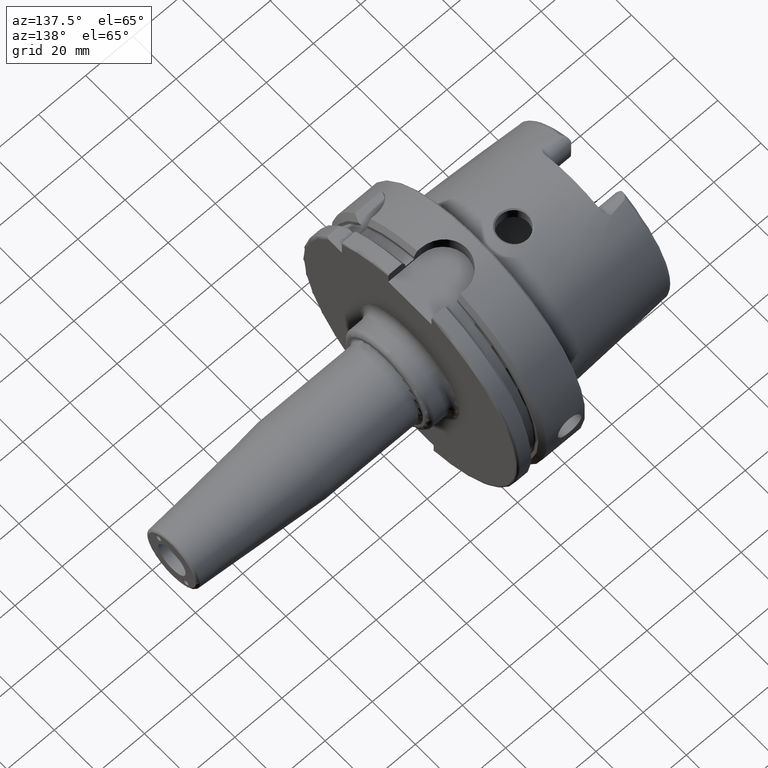
[diagram: clean part render]
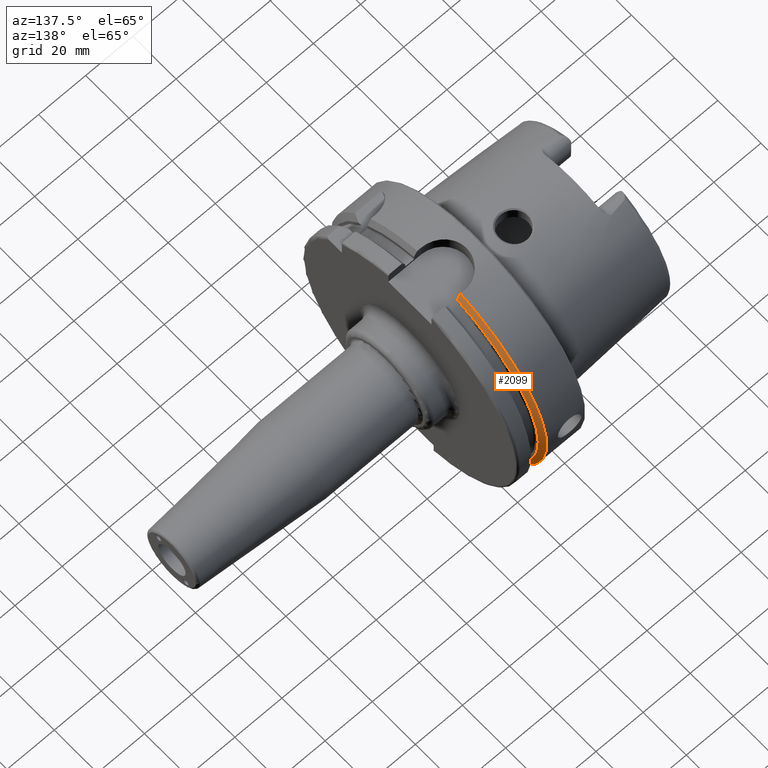
[diagram: same view with one face highlighted and labeled with its STEP entity id]
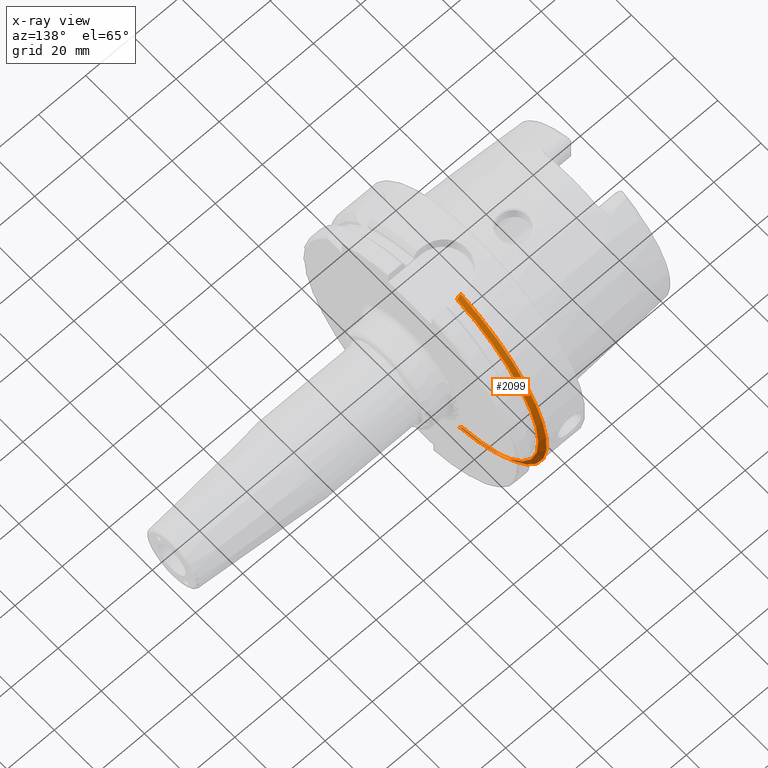
[diagram: x-ray of the same camera — body ghosted, the highlighted face saturated]
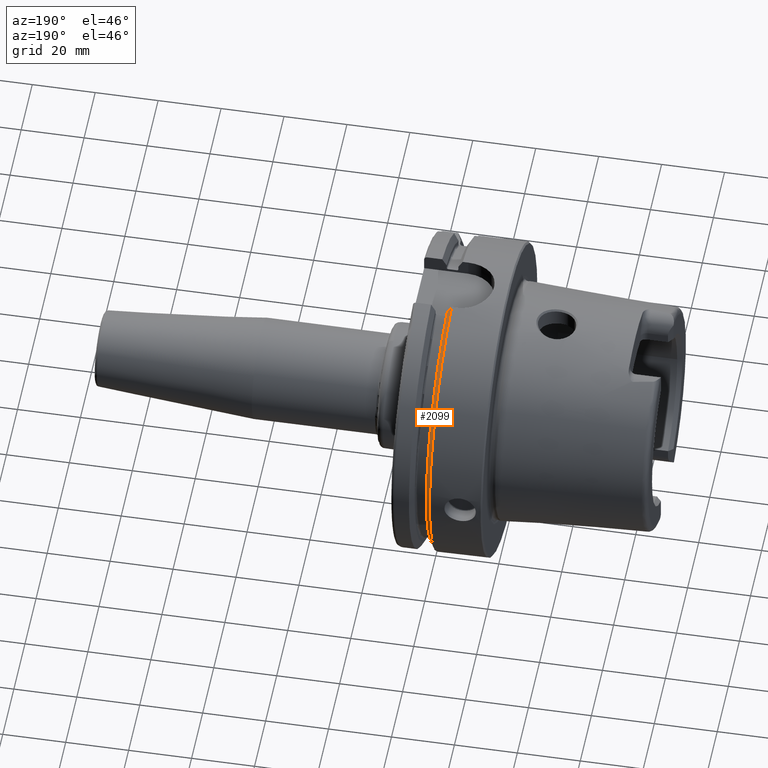
[diagram: same view with one face highlighted and labeled with its STEP entity id]
A machine part, auxiliary view. The second image highlights one B-rep face of the part: STEP entity #2099.
The next image is the same camera in x-ray: the body ghosted, the highlighted face saturated — about 6% of this face is hidden behind the body in this view.
A second angle (auxiliary view) of the same face is appended — the face is thin or edge-on in the first view.
In plain terms, the highlighted conical surface has half-angle 60 deg.
Its self-contained STEP definition (entity closure, byte-faithful):
#23=(
BOUNDED_CURVE()
B_SPLINE_CURVE(2,(#4250,#4251,#4252),.UNSPECIFIED.,.F.,.F.)
B_SPLINE_CURVE_WITH_KNOTS((3,3),(0.,0.282923490805558),.UNSPECIFIED.)
CURVE()
GEOMETRIC_REPRESENTATION_ITEM()
RATIONAL_B_SPLINE_CURVE((1.,1.00031934109636,1.))
REPRESENTATION_ITEM('')
);
#28=(
BOUNDED_CURVE()
B_SPLINE_CURVE(2,(#4415,#4416,#4417),.UNSPECIFIED.,.F.,.F.)
B_SPLINE_CURVE_WITH_KNOTS((3,3),(0.,0.281931851964124),.UNSPECIFIED.)
CURVE()
GEOMETRIC_REPRESENTATION_ITEM()
RATIONAL_B_SPLINE_CURVE((1.,1.00031639798907,1.))
REPRESENTATION_ITEM('')
);
#285=FACE_OUTER_BOUND('',#418,.T.);
#418=EDGE_LOOP('',(#1762,#1763,#1764,#1765));
#752=CIRCLE('',#2291,50.);
#776=CIRCLE('',#2340,47.5975952641917);
#959=VERTEX_POINT('',#4131);
#960=VERTEX_POINT('',#4133);
#978=VERTEX_POINT('',#4249);
#1003=VERTEX_POINT('',#4411);
#1211=EDGE_CURVE('',#960,#959,#752,.T.);
#1241=EDGE_CURVE('',#978,#960,#23,.T.);
#1281=EDGE_CURVE('',#978,#1003,#776,.T.);
#1283=EDGE_CURVE('',#959,#1003,#28,.T.);
#1762=ORIENTED_EDGE('',*,*,#1241,.T.);
#1763=ORIENTED_EDGE('',*,*,#1211,.T.);
#1764=ORIENTED_EDGE('',*,*,#1283,.T.);
#1765=ORIENTED_EDGE('',*,*,#1281,.F.);
#2019=CONICAL_SURFACE('',#2341,48.7987976320958,1.0471975511966);
#2099=ADVANCED_FACE('',(#285),#2019,.T.);
#2291=AXIS2_PLACEMENT_3D('',#4134,#2739,#2740);
#2340=AXIS2_PLACEMENT_3D('',#4412,#2862,#2863);
#2341=AXIS2_PLACEMENT_3D('',#4414,#2865,#2866);
#2739=DIRECTION('center_axis',(1.,0.,0.));
#2740=DIRECTION('ref_axis',(0.,0.,-1.));
#2862=DIRECTION('center_axis',(1.,0.,0.));
#2863=DIRECTION('ref_axis',(0.,0.,-1.));
#2865=DIRECTION('center_axis',(-1.,0.,0.));
#2866=DIRECTION('ref_axis',(0.,1.,0.));
#4131=CARTESIAN_POINT('',(16.7379709790786,10.,48.9897948556636));
#4133=CARTESIAN_POINT('',(16.7379709790786,11.,-48.7749935930288));
#4134=CARTESIAN_POINT('Origin',(16.7379709790786,0.,0.));
#4249=CARTESIAN_POINT('',(18.125,11.,-46.3090819919139));
#4250=CARTESIAN_POINT('Ctrl Pts',(18.125,11.,-46.3090819919139));
#4251=CARTESIAN_POINT('Ctrl Pts',(17.4494711035784,11.,-47.5116880808765));
#4252=CARTESIAN_POINT('Ctrl Pts',(16.7379709790786,11.,-48.7749935930288));
#4411=CARTESIAN_POINT('',(18.125,10.,46.5352670018536));
#4412=CARTESIAN_POINT('Origin',(18.125,0.,0.));
#4414=CARTESIAN_POINT('Origin',(17.4314854895393,0.,0.));
#4415=CARTESIAN_POINT('Ctrl Pts',(16.7379709790786,10.,48.9897948556636));
#4416=CARTESIAN_POINT('Ctrl Pts',(17.4493054275198,10.,47.7323213252028));
#4417=CARTESIAN_POINT('Ctrl Pts',(18.125,10.,46.5352670018536));